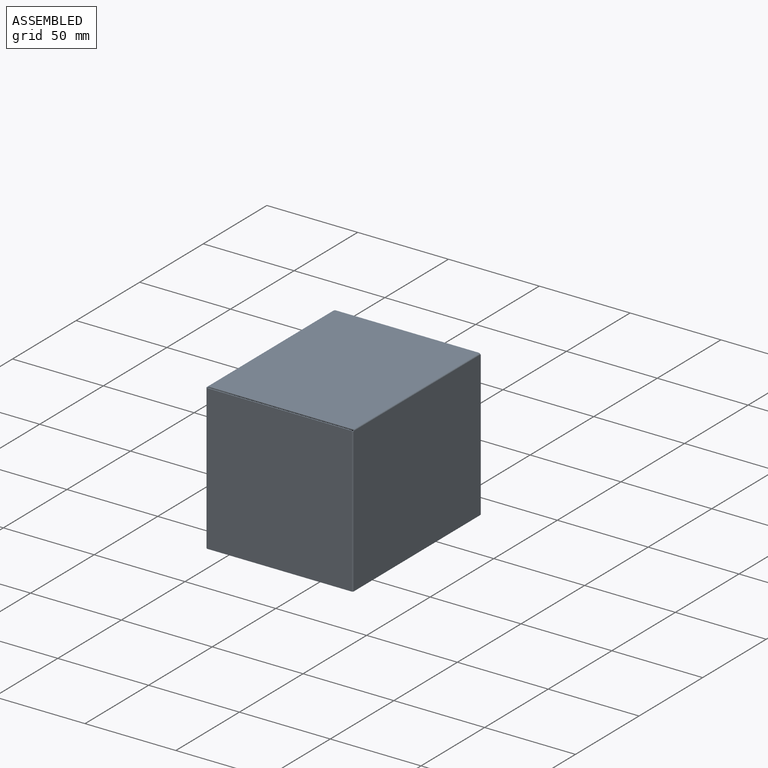
[diagram: assembled view]
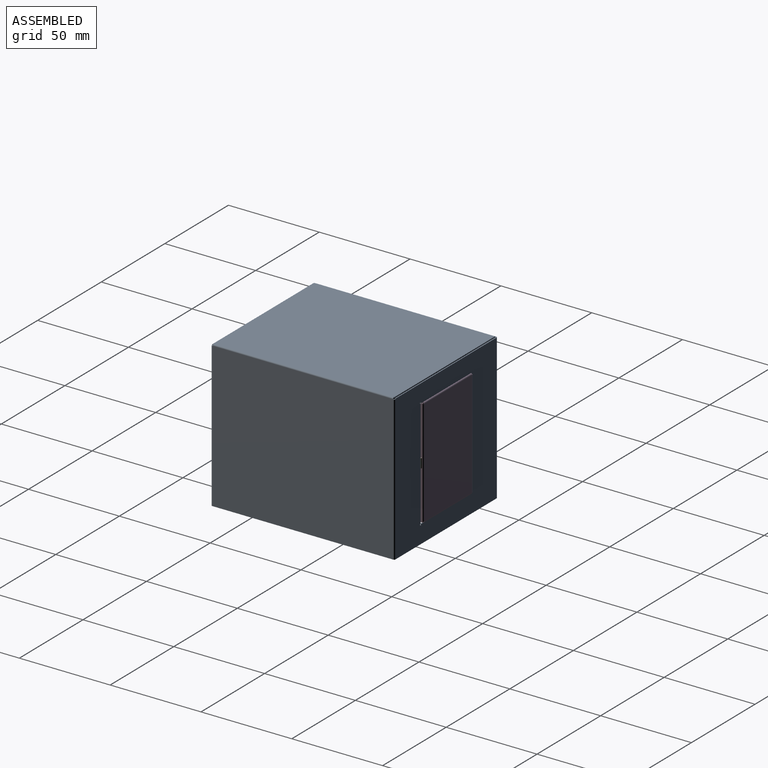
[diagram: assembled view, second angle]
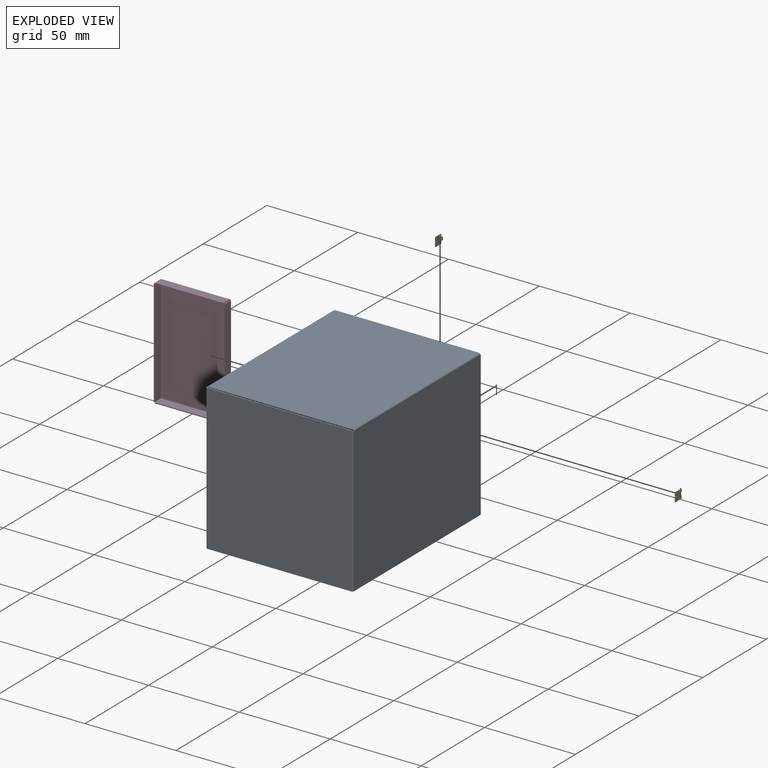
[diagram: exploded view]
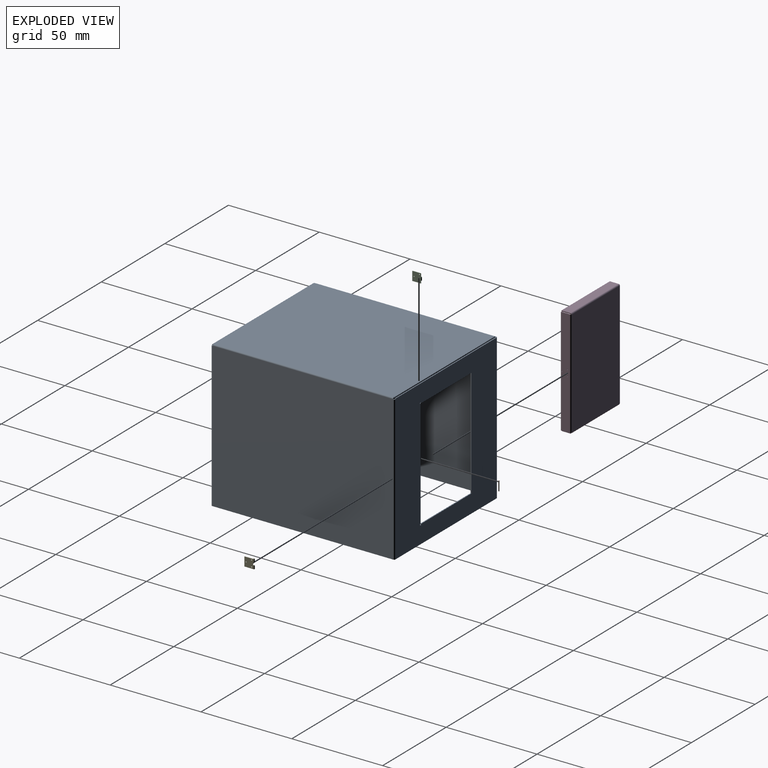
[diagram: exploded view, second angle]
ASSEMBLY  parts=5 mates=4
PART A: 73 faces, bbox 101x81x80.5 mm
  f0: plane 99.6x79.8mm, normal (0,1,0), area 7948mm2, adj f2,f3,f4,f5,f6,f47,f58,f71
  f1: plane 99.6x79.8mm, normal (0,-1,0), area 7948mm2, adj f2,f3,f4,f5,f6,f48,f59,f72
  f2: plane 99.6x0.5mm, normal (0,0,-1), area 49.8mm2, adj f0,f1,f45,f56
  f3: plane 0.5x0.17mm, normal (-1,0,0), area 0.1mm2, adj f0,f1,f4,f70
  f4: plane 0.5x0.17mm, normal (0,0,1), area 0.1mm2, adj f0,f1,f3,f46
  f5: plane 0.5x0.17mm, normal (0,0,1), area 0.1mm2, adj f0,f1,f6,f57
  f6: plane 0.5x0.17mm, normal (1,0,0), area 0.1mm2, adj f0,f1,f5,f69
  f7: plane 99.78x0.5mm, normal (0,0,-1), area 49.9mm2, adj f8,f10,f11,f41
  f8: plane 80x0.5mm, normal (1,0,0), area 40mm2, adj f7,f9,f10,f11
  f9: plane 99.78x0.5mm, normal (0,0,1), area 49.9mm2, adj f8,f10,f11,f42
  f10: plane 99.78x80mm, normal (0,-1,0), area 7982.4mm2, adj f7,f8,f9,f43
  f11: plane 99.78x80mm, normal (0,1,0), area 7982.4mm2, adj f7,f8,f9,f44
  f12: plane 39.53x0.5mm, normal (0,0,-1), area 19.8mm2, adj f14,f15,f16,f22,f39
  f13: plane 79.43x0.5mm, normal (0,0,1), area 39.7mm2, adj f14,f15,f28,f42
  f14: plane 80x79.6mm, normal (-1,0,0), area 3955mm2, adj f12,f13,f16,f17,f18,f19,f20,f21
  f15: plane 80x79.6mm, normal (1,0,0), area 3955mm2, adj f12,f13,f16,f17,f18,f19,f20,f21
  f16: plane 60x0.5mm, normal (0,1,0), area 30mm2, adj f12,f14,f15,f17
  f17: plane 39.53x0.5mm, normal (0,0,1), area 19.8mm2, adj f14,f15,f16,f26,f39
  f18: plane 79.6x0.5mm, normal (0,0,-1), area 39.8mm2, adj f14,f15,f41,f45
  f19: plane 0.7x0.5mm, normal (0,0,-1), area 0.4mm2, adj f14,f15,f20,f22
  f20: cylinder r=0.27mm len=0.53mm, axis (1,0,0), area 0.4mm2, adj f14,f15,f19,f21
  f21: plane 0.5x0.03mm, normal (0,0,1), area 0mm2, adj f14,f15,f20,f37
  f22: plane 0.53x0.5mm, normal (0,1,0), area 0.3mm2, adj f12,f14,f15,f19,f37
  f23: plane 0.5x0.03mm, normal (0,0,-1), area 0mm2, adj f14,f15,f24,f38
  f24: cylinder r=0.27mm len=0.53mm, axis (1,0,0), area 0.4mm2, adj f14,f15,f23,f25
  f25: plane 0.7x0.5mm, normal (0,0,1), area 0.4mm2, adj f14,f15,f24,f26
  f26: plane 0.53x0.5mm, normal (0,1,0), area 0.3mm2, adj f14,f15,f17,f25,f38
  f27: plane 0.5x0.17mm, normal (0,0,1), area 0.1mm2, adj f14,f15,f28,f46
  f28: plane 0.5x0.37mm, normal (0,1,0), area 0.2mm2, adj f13,f14,f15,f27
  f29: plane 60x0.5mm, normal (1,0,0), area 30mm2, adj f30,f34,f35,f36
  f30: plane 4.3x0.5mm, normal (0,0,1), area 2.2mm2, adj f29,f35,f36,f37
  f31: cylinder r=0.25mm len=0.5mm, axis (0,-1,0), area 0.8mm2, adj f35,f36
  f32: cylinder r=0.25mm len=0.5mm, axis (0,-1,0), area 0.8mm2, adj f35,f36
  f33: cylinder r=0.25mm len=0.5mm, axis (0,-1,0), area 0.8mm2, adj f35,f36
  f34: plane 4.3x0.5mm, normal (0,0,-1), area 2.2mm2, adj f29,f35,f36,f38
  f35: plane 60x4.3mm, normal (0,-1,0), area 257.4mm2, adj f29,f30,f31,f32,f33,f34,f39
  f36: plane 60x4.3mm, normal (0,1,0), area 257.4mm2, adj f29,f30,f31,f32,f33,f34,f40
  f37: plane 0.7x0.7mm, normal (0,0,1), area 0.4mm2, adj f15,f21,f22,f30,f39,f40
  f38: plane 0.7x0.7mm, normal (0,0,-1), area 0.4mm2, adj f15,f23,f26,f34,f39,f40
  f39: cylinder r=0.7mm len=60mm, axis (0,0,1), area 66mm2, adj f12,f14,f17,f35,f37,f38
  f40: cylinder r=0.2mm len=60mm, axis (0,0,1), area 18.8mm2, adj f15,f36,f37,f38
  f41: plane 0.7x0.7mm, normal (0,0,-1), area 0.4mm2, adj f7,f18,f43,f44
  f42: plane 0.7x0.7mm, normal (0,0,1), area 0.4mm2, adj f9,f13,f43,f44
  f43: cylinder r=0.7mm len=80mm, axis (0,0,-1), area 88mm2, adj f10,f14,f41,f42
  f44: cylinder r=0.2mm len=80mm, axis (0,0,-1), area 25.1mm2, adj f11,f15,f41,f42
  f45: plane 0.7x0.7mm, normal (0,0,-1), area 0.4mm2, adj f2,f18,f47,f48
  f46: plane 0.7x0.7mm, normal (0,0,1), area 0.4mm2, adj f4,f27,f47,f48
  f47: cylinder r=0.7mm len=79.63mm, axis (0,0,-1), area 87.6mm2, adj f0,f14,f45,f46
  f48: cylinder r=0.2mm len=79.63mm, axis (0,0,-1), area 25mm2, adj f1,f15,f45,f46
  f49: plane 79.61x0.5mm, normal (0,0,1), area 39.8mm2, adj f50,f51,f52,f55
  f50: plane 80x79.78mm, normal (1,0,0), area 6382.3mm2, adj f49,f52,f53,f54,f55,f58
  f51: plane 80x79.78mm, normal (-1,0,0), area 6382.3mm2, adj f49,f52,f53,f54,f55,f59
  f52: plane 80x0.5mm, normal (0,-1,0), area 40mm2, adj f49,f50,f51,f53
  f53: plane 79.78x0.5mm, normal (0,0,-1), area 39.9mm2, adj f50,f51,f52,f56
  f54: plane 0.5x0.17mm, normal (0,0,1), area 0.1mm2, adj f50,f51,f55,f57
  f55: plane 0.5x0.37mm, normal (0,1,0), area 0.2mm2, adj f49,f50,f51,f54
  f56: plane 0.7x0.7mm, normal (0,0,-1), area 0.4mm2, adj f2,f53,f58,f59
  f57: plane 0.7x0.7mm, normal (0,0,1), area 0.4mm2, adj f5,f54,f58,f59
  f58: cylinder r=0.7mm len=79.63mm, axis (0,0,-1), area 87.6mm2, adj f0,f50,f56,f57
  f59: cylinder r=0.2mm len=79.63mm, axis (0,0,-1), area 25mm2, adj f1,f51,f56,f57
  f60: plane 79.13x0.5mm, normal (1,0,0), area 39.6mm2, adj f62,f63,f64,f66
  f61: plane 79.13x0.5mm, normal (-1,0,0), area 39.6mm2, adj f62,f63,f64,f68
  f62: plane 99.6x79.3mm, normal (0,0,1), area 7898.2mm2, adj f60,f61,f64,f65,f66,f67,f68,f71
  f63: plane 99.6x79.3mm, normal (0,0,-1), area 7898.2mm2, adj f60,f61,f64,f65,f66,f67,f68,f72
  f64: plane 99.6x0.5mm, normal (0,-1,0), area 49.8mm2, adj f60,f61,f62,f63
  f65: plane 0.5x0.17mm, normal (1,0,0), area 0.1mm2, adj f62,f63,f66,f69
  f66: plane 0.5x0.17mm, normal (0,1,0), area 0.1mm2, adj f60,f62,f63,f65
  f67: plane 0.5x0.17mm, normal (-1,0,0), area 0.1mm2, adj f62,f63,f68,f70
  f68: plane 0.5x0.17mm, normal (0,1,0), area 0.1mm2, adj f61,f62,f63,f67
  f69: plane 0.7x0.7mm, normal (1,0,0), area 0.4mm2, adj f6,f65,f71,f72
  f70: plane 0.7x0.7mm, normal (-1,0,0), area 0.4mm2, adj f3,f67,f71,f72
  f71: cylinder r=0.7mm len=99.27mm, axis (1,0,0), area 109.1mm2, adj f0,f62,f69,f70
  f72: cylinder r=0.2mm len=99.27mm, axis (1,0,0), area 31.2mm2, adj f1,f63,f69,f70
PART B: 6 faces, bbox 0.9x5.1x0.9 mm
  f0: cylinder r=0.4mm len=0.8mm, axis (0,-1,0), area 0.1mm2, adj f2,f3
  f1: plane 0.7x0.7mm, normal (0,1,0), area 0.4mm2, adj f3
  f2: plane 0.8x0.8mm, normal (0,-1,0), area 0.3mm2, adj f0,f4
  f3: torus R=0.35mm, axis (0,-1,0), area 0.2mm2, adj f0,f1
  f4: cylinder r=0.25mm len=5mm, axis (0,1,0), area 7.9mm2, adj f2,f5
  f5: plane 0.5x0.5mm, normal (0,-1,0), area 0.2mm2, adj f4
PART C: 14 faces, bbox 0.8x5.4x5 mm
  f0: plane 5x4.75mm, normal (1,0,0), area 23mm2, adj f1,f2,f3,f6,f7,f8,f9,f10
  f1: plane 4.75x0.2mm, normal (0,0,1), area 1mm2, adj f0,f4,f6,f10
  f2: plane 4.75x0.2mm, normal (0,0,-1), area 1mm2, adj f0,f4,f6,f9
  f3: cylinder r=0.4mm len=1.6mm, axis (0,0,-1), area 3.4mm2, adj f0,f4,f7,f8
  f4: plane 5x5mm, normal (-1,0,0), area 23.6mm2, adj f1,f2,f3,f6,f7,f8,f9,f10
  f5: cylinder r=0.25mm len=1.6mm, axis (0,0,-1), area 2.5mm2, adj f7,f8
  f6: plane 5x0.2mm, normal (0,-1,0), area 1mm2, adj f0,f1,f2,f4
  f7: plane 0.8x0.8mm, normal (0,0,-1), area 0.3mm2, adj f0,f3,f4,f5,f9
  f8: plane 0.8x0.8mm, normal (0,0,1), area 0.3mm2, adj f0,f3,f4,f5,f10
  f9: plane 1.7x0.2mm, normal (0,1,0), area 0.3mm2, adj f0,f2,f4,f7
  f10: plane 1.7x0.2mm, normal (0,1,0), area 0.3mm2, adj f0,f1,f4,f8
  f11: cylinder r=0.25mm len=0.5mm, axis (1,0,0), area 0.3mm2, adj f0,f4
  f12: cylinder r=0.25mm len=0.5mm, axis (1,0,0), area 0.3mm2, adj f0,f4
  f13: cylinder r=0.25mm len=0.5mm, axis (1,0,0), area 0.3mm2, adj f0,f4
PART D: 45 faces, bbox 39x5.5x60 mm
  f0: plane 4.8x0.5mm, normal (1,0,0), area 2.4mm2, adj f1,f3,f4,f41
  f1: plane 37.96x0.5mm, normal (0,1,0), area 19mm2, adj f0,f2,f3,f4
  f2: plane 4.8x0.5mm, normal (-1,0,0), area 2.4mm2, adj f1,f3,f4,f42
  f3: plane 37.96x4.8mm, normal (0,0,1), area 182.2mm2, adj f0,f1,f2,f43
  f4: plane 37.96x4.8mm, normal (0,0,-1), area 182.2mm2, adj f0,f1,f2,f44
  f5: plane 58.6x37.6mm, normal (0,-1,0), area 2203.4mm2, adj f7,f8,f9,f10,f18,f30,f39,f43
  f6: plane 58.6x37.6mm, normal (0,1,0), area 2203.4mm2, adj f7,f8,f9,f10,f19,f31,f40,f44
  f7: plane 0.5x0.01mm, normal (-0.71,0,-0.71), area 0mm2, adj f5,f6,f17,f28
  f8: plane 0.5x0.01mm, normal (0.71,0,-0.71), area 0mm2, adj f5,f6,f16,f37
  f9: plane 0.5x0.01mm, normal (0.71,0,0.71), area 0mm2, adj f5,f6,f38,f41
  f10: plane 0.5x0.01mm, normal (-0.71,0,0.71), area 0mm2, adj f5,f6,f29,f42
  f11: plane 4.8x0.5mm, normal (-1,0,0), area 2.4mm2, adj f12,f14,f15,f17
  f12: plane 37.96x0.5mm, normal (0,1,0), area 19mm2, adj f11,f13,f14,f15
  f13: plane 4.8x0.5mm, normal (1,0,0), area 2.4mm2, adj f12,f14,f15,f16
  f14: plane 37.96x4.8mm, normal (0,0,-1), area 182.2mm2, adj f11,f12,f13,f18
  f15: plane 37.96x4.8mm, normal (0,0,1), area 182.2mm2, adj f11,f12,f13,f19
  f16: bspline ~0.7x0.7mm, area 0.4mm2, adj f8,f13,f18,f19
  f17: bspline ~0.7x0.7mm, area 0.4mm2, adj f7,f11,f18,f19
  f18: cylinder r=0.7mm len=37.96mm, axis (1,0,0), area 41.5mm2, adj f5,f14,f16,f17
  f19: cylinder r=0.2mm len=37.96mm, axis (1,0,0), area 11.9mm2, adj f6,f15,f16,f17
  f20: plane 4.8x0.5mm, normal (0,0,1), area 2.4mm2, adj f21,f26,f27,f29
  f21: plane 58.96x0.5mm, normal (0,1,0), area 29.5mm2, adj f20,f25,f26,f27
  f22: cylinder r=0.25mm len=0.5mm, axis (1,0,0), area 0.8mm2, adj f26,f27
  f23: cylinder r=0.25mm len=0.5mm, axis (1,0,0), area 0.8mm2, adj f26,f27
  f24: cylinder r=0.25mm len=0.5mm, axis (1,0,0), area 0.8mm2, adj f26,f27
  f25: plane 4.8x0.5mm, normal (0,0,-1), area 2.4mm2, adj f21,f26,f27,f28
  f26: plane 58.96x4.8mm, normal (-1,0,0), area 282.4mm2, adj f20,f21,f22,f23,f24,f25,f30
  f27: plane 58.96x4.8mm, normal (1,0,0), area 282.4mm2, adj f20,f21,f22,f23,f24,f25,f31
  f28: bspline ~0.7x0.7mm, area 0.4mm2, adj f7,f25,f30,f31
  f29: bspline ~0.7x0.7mm, area 0.4mm2, adj f10,f20,f30,f31
  f30: cylinder r=0.7mm len=58.96mm, axis (0,0,-1), area 64.6mm2, adj f5,f26,f28,f29
  f31: cylinder r=0.2mm len=58.96mm, axis (0,0,-1), area 18.5mm2, adj f6,f27,f28,f29
  f32: plane 4.8x0.5mm, normal (0,0,-1), area 2.4mm2, adj f33,f35,f36,f37
  f33: plane 58.96x0.5mm, normal (0,1,0), area 29.5mm2, adj f32,f34,f35,f36
  f34: plane 4.8x0.5mm, normal (0,0,1), area 2.4mm2, adj f33,f35,f36,f38
  f35: plane 58.96x4.8mm, normal (1,0,0), area 283mm2, adj f32,f33,f34,f39
  f36: plane 58.96x4.8mm, normal (-1,0,0), area 283mm2, adj f32,f33,f34,f40
  f37: bspline ~0.7x0.7mm, area 0.4mm2, adj f8,f32,f39,f40
  f38: bspline ~0.7x0.7mm, area 0.4mm2, adj f9,f34,f39,f40
  f39: cylinder r=0.7mm len=58.96mm, axis (0,0,-1), area 64.6mm2, adj f5,f35,f37,f38
  f40: cylinder r=0.2mm len=58.96mm, axis (0,0,-1), area 18.5mm2, adj f6,f36,f37,f38
  f41: bspline ~0.7x0.7mm, area 0.4mm2, adj f0,f9,f43,f44
  f42: bspline ~0.7x0.7mm, area 0.4mm2, adj f2,f10,f43,f44
  f43: cylinder r=0.7mm len=37.96mm, axis (1,0,0), area 41.5mm2, adj f3,f5,f41,f42
  f44: cylinder r=0.2mm len=37.96mm, axis (1,0,0), area 11.9mm2, adj f4,f6,f41,f42
PART E: 15 faces, bbox 0.8x5.4x5 mm
  f0: cylinder r=0.4mm len=1.7mm, axis (0,0,1), area 3.6mm2, adj f4,f5,f7,f9
  f1: cylinder r=0.25mm len=1.7mm, axis (0,0,1), area 2.7mm2, adj f4,f9
  f2: cylinder r=0.4mm len=1.7mm, axis (0,0,1), area 3.6mm2, adj f5,f6,f7,f10
  f3: cylinder r=0.25mm len=1.7mm, axis (0,0,1), area 2.7mm2, adj f6,f10
  f4: plane 5.4x0.8mm, normal (0,0,1), area 1.3mm2, adj f0,f1,f5,f7,f8
  f5: plane 5x5mm, normal (-1,0,0), area 23.9mm2, adj f0,f2,f4,f6,f8,f9,f10,f11
  f6: plane 5.4x0.8mm, normal (0,0,-1), area 1.3mm2, adj f2,f3,f5,f7,f8
  f7: plane 5x4.65mm, normal (1,0,0), area 22.7mm2, adj f0,f2,f4,f6,f8,f11,f12,f13
  f8: plane 5x0.2mm, normal (0,-1,0), area 1mm2, adj f4,f5,f6,f7
  f9: plane 0.8x0.8mm, normal (0,0,-1), area 0.3mm2, adj f0,f1,f5,f11
  f10: plane 0.8x0.8mm, normal (0,0,1), area 0.3mm2, adj f2,f3,f5,f11
  f11: plane 1.6x0.2mm, normal (0,1,0), area 0.3mm2, adj f5,f7,f9,f10
  f12: cylinder r=0.25mm len=0.5mm, axis (1,0,0), area 0.3mm2, adj f5,f7
  f13: cylinder r=0.25mm len=0.5mm, axis (1,0,0), area 0.3mm2, adj f5,f7
  f14: cylinder r=0.25mm len=0.5mm, axis (1,0,0), area 0.3mm2, adj f5,f7
PLACE A rot(axis=(0,0,-1),90deg) t=(-79.3,-69.13,-13.76)mm
PLACE B rot(axis=(0,-0.71,-0.71),180deg) t=(-100.2,-18.96,-11.26)mm
PLACE C rot(axis=(-0.88,0.47,-0.07),0deg) t=(-100.5,-23.96,-13.76)mm
PLACE D rot(axis=(0,0,1),180deg) t=(-120.1,-23.58,-13.76)mm
PLACE E rot(axis=(0,-1,0),180deg) t=(-99.8,-23.96,-16.26)mm
MATE revolute C.f3 <-> E.f0  axis (0,0,1) through (-100.2,-18.96,-12.96)mm
MATE revolute B.f4 <-> E.f0  axis (0,0,-1) through (-100.2,-18.96,-11.26)mm
MATE fastened C.f13 <-> D.f23  axis (-1,0,0) through (-100.6,-20.08,-12.03)mm
MATE fastened E.f13 <-> A.f32  axis (1,0,0) through (-99.8,-20.13,-12.03)mm
